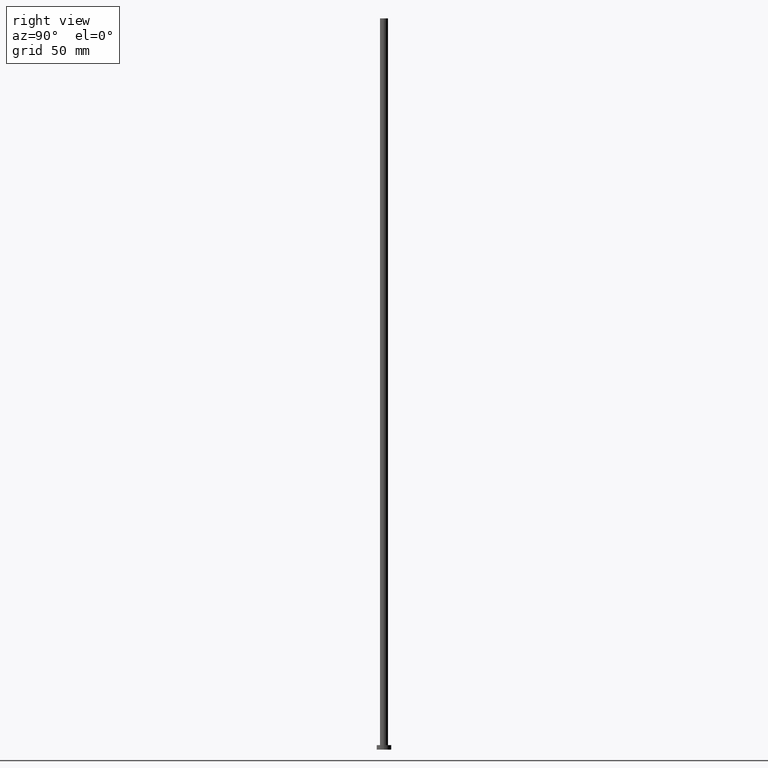
[diagram: clean part render]
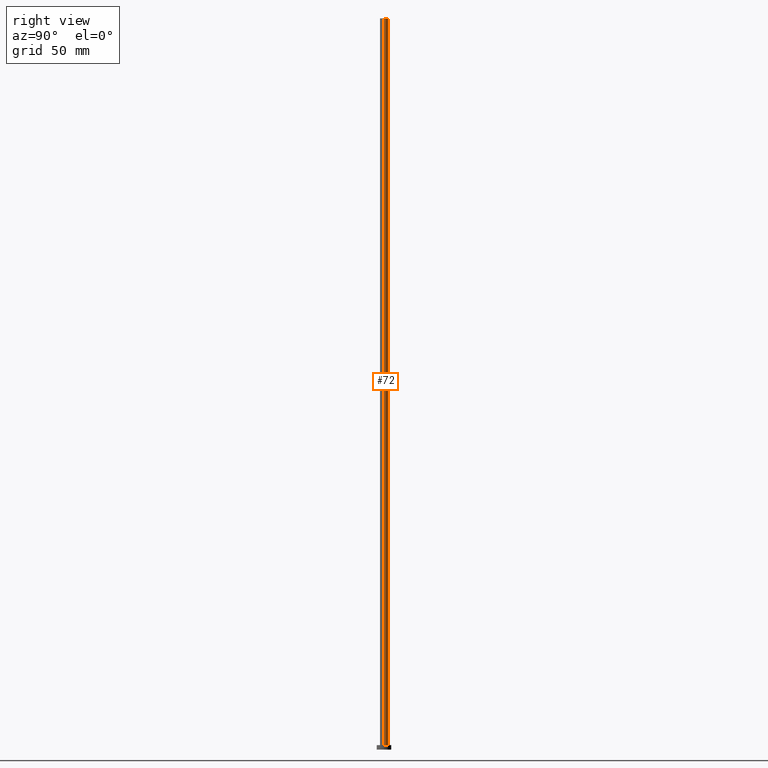
[diagram: same view with one face highlighted and labeled with its STEP entity id]
A machine part, right view. The second image highlights one B-rep face of the part: STEP entity #72.
In plain terms, the highlighted cylindrical surface (edge-blend (fillet) strip) has radius 2.75 mm, axis along (-0, -0, -1).
Its self-contained STEP definition (entity closure, byte-faithful):
#7 = CIRCLE ( 'NONE', #113, 2.750000000000000000 ) ;
#14 = VERTEX_POINT ( 'NONE', #114 ) ;
#24 = VECTOR ( 'NONE', #28, 1000.000000000000000 ) ;
#25 = CARTESIAN_POINT ( 'NONE',  ( -2.750000000000000000, 0.000000000000000000, 500.0000000000000000 ) ) ;
#28 = DIRECTION ( 'NONE',  ( -0.000000000000000000, -0.000000000000000000, -1.000000000000000000 ) ) ;
#30 = ORIENTED_EDGE ( 'NONE', *, *, #44, .T. ) ;
#33 = CARTESIAN_POINT ( 'NONE',  ( 2.750000000000000000, 3.367778697655220519E-16, 500.0000000000000000 ) ) ;
#35 = CARTESIAN_POINT ( 'NONE',  ( 2.750000000000000000, 3.367778697655220519E-16, 3.000000000000000000 ) ) ;
#44 = EDGE_CURVE ( 'NONE', #209, #47, #215, .T. ) ;
#47 = VERTEX_POINT ( 'NONE', #35 ) ;
#55 = AXIS2_PLACEMENT_3D ( 'NONE', #156, #133, #95 ) ;
#64 = EDGE_CURVE ( 'NONE', #47, #207, #7, .T. ) ;
#72 = ADVANCED_FACE ( 'NONE', ( #175 ), #233, .T. ) ;
#73 = DIRECTION ( 'NONE',  ( 1.000000000000000000, 0.000000000000000000, 0.000000000000000000 ) ) ;
#89 = ORIENTED_EDGE ( 'NONE', *, *, #117, .F. ) ;
#91 = ORIENTED_EDGE ( 'NONE', *, *, #186, .F. ) ;
#94 = CARTESIAN_POINT ( 'NONE',  ( 0.000000000000000000, 0.000000000000000000, 3.000000000000000000 ) ) ;
#95 = DIRECTION ( 'NONE',  ( -1.000000000000000000, 0.000000000000000000, 0.000000000000000000 ) ) ;
#110 = CIRCLE ( 'NONE', #212, 2.750000000000000000 ) ;
#113 = AXIS2_PLACEMENT_3D ( 'NONE', #94, #197, #158 ) ;
#114 = CARTESIAN_POINT ( 'NONE',  ( -2.750000000000000000, 0.000000000000000000, 500.0000000000000000 ) ) ;
#117 = EDGE_CURVE ( 'NONE', #209, #14, #110, .T. ) ;
#122 = VECTOR ( 'NONE', #216, 1000.000000000000000 ) ;
#133 = DIRECTION ( 'NONE',  ( -0.000000000000000000, -0.000000000000000000, -1.000000000000000000 ) ) ;
#145 = CARTESIAN_POINT ( 'NONE',  ( -2.750000000000000000, 0.000000000000000000, 3.000000000000000000 ) ) ;
#156 = CARTESIAN_POINT ( 'NONE',  ( 0.000000000000000000, 0.000000000000000000, 500.0000000000000000 ) ) ;
#158 = DIRECTION ( 'NONE',  ( 1.000000000000000000, 0.000000000000000000, 0.000000000000000000 ) ) ;
#164 = LINE ( 'NONE', #25, #24 ) ;
#171 = ORIENTED_EDGE ( 'NONE', *, *, #64, .T. ) ;
#174 = CARTESIAN_POINT ( 'NONE',  ( 0.000000000000000000, 0.000000000000000000, 500.0000000000000000 ) ) ;
#175 = FACE_OUTER_BOUND ( 'NONE', #246, .T. ) ;
#186 = EDGE_CURVE ( 'NONE', #14, #207, #164, .T. ) ;
#197 = DIRECTION ( 'NONE',  ( 0.000000000000000000, 0.000000000000000000, 1.000000000000000000 ) ) ;
#207 = VERTEX_POINT ( 'NONE', #145 ) ;
#209 = VERTEX_POINT ( 'NONE', #239 ) ;
#211 = DIRECTION ( 'NONE',  ( 0.000000000000000000, 0.000000000000000000, 1.000000000000000000 ) ) ;
#212 = AXIS2_PLACEMENT_3D ( 'NONE', #174, #211, #73 ) ;
#215 = LINE ( 'NONE', #33, #122 ) ;
#216 = DIRECTION ( 'NONE',  ( -0.000000000000000000, -0.000000000000000000, -1.000000000000000000 ) ) ;
#233 = CYLINDRICAL_SURFACE ( 'NONE', #55, 2.750000000000000000 ) ;
#239 = CARTESIAN_POINT ( 'NONE',  ( 2.750000000000000000, 3.367778697655220519E-16, 500.0000000000000000 ) ) ;
#246 = EDGE_LOOP ( 'NONE', ( #89, #30, #171, #91 ) ) ;